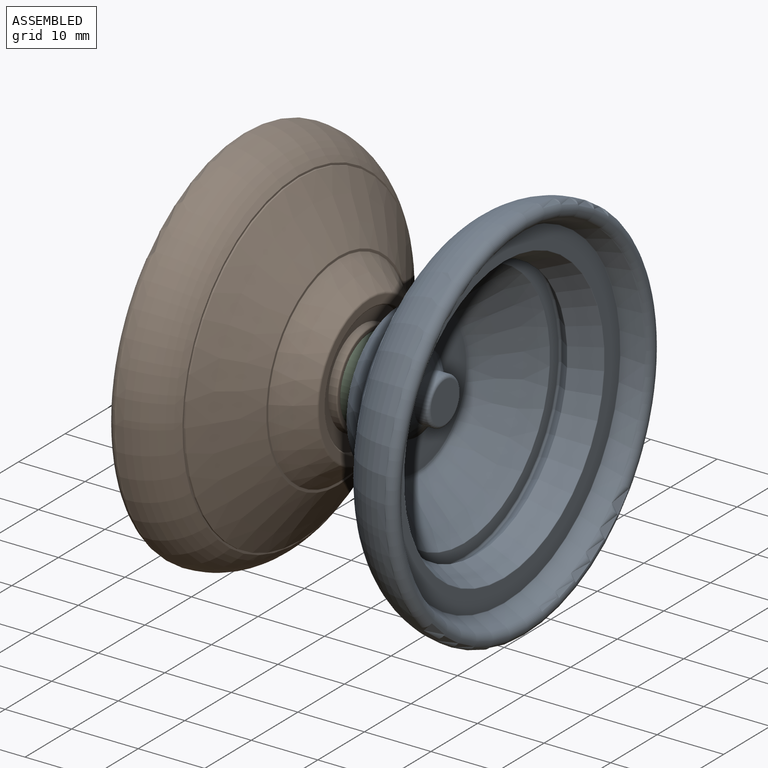
[diagram: assembled view]
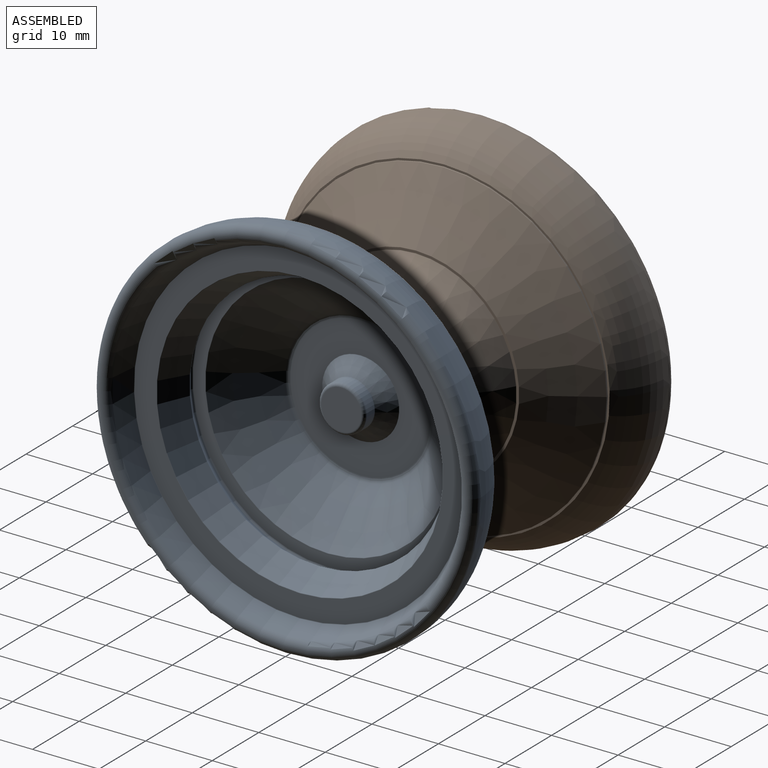
[diagram: assembled view, second angle]
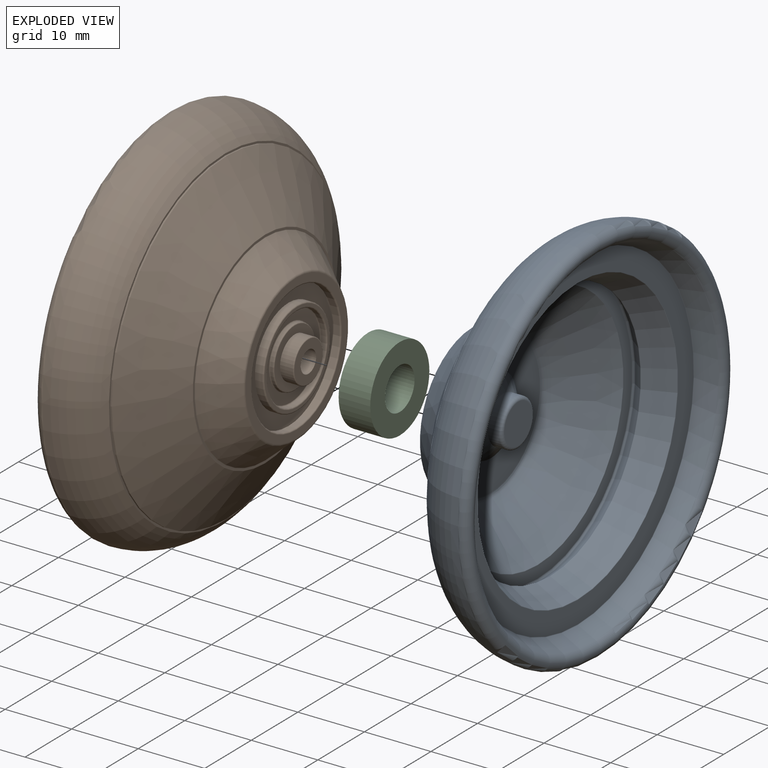
[diagram: exploded view]
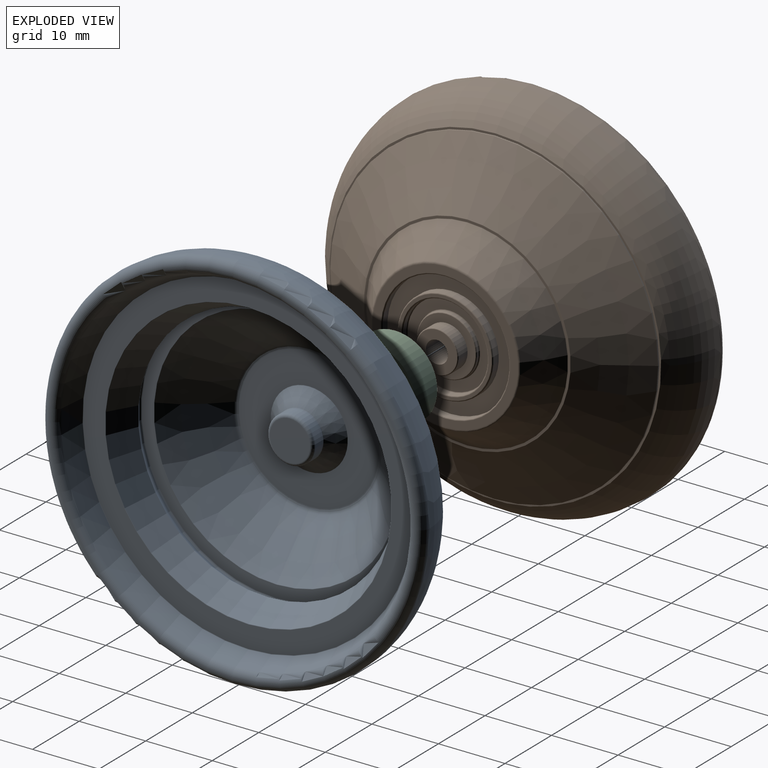
[diagram: exploded view, second angle]
ASSEMBLY  parts=3 mates=2
PART A: 49 faces, bbox 26.3x62.2x62.2 mm
  f0: cone r=26.29mm half-angle=26.5deg, axis (-1,0,0), area 477mm2, adj f1,f48
  f1: torus R=24.88mm, axis (-1,0,0), area 17.4mm2, adj f0,f2
  f2: plane 49.75x49.75mm, normal (-1,0,0), area 485mm2, adj f1,f3
  f3: torus R=21.55mm, axis (-1,0,0), area 15mm2, adj f2,f4
  f4: cone r=21.46mm half-angle=26.5deg, axis (-1,0,0), area 578.5mm2, adj f3,f5
  f5: torus R=19.54mm, axis (-1,0,0), area 13mm2, adj f4,f6
  f6: cone r=19.46mm half-angle=34.5deg, axis (1,0,0), area 221.4mm2, adj f5,f7
  f7: torus R=20.25mm, axis (-1,0,0), area 69.7mm2, adj f6,f8
  f8: plane 40.51x40.51mm, normal (-1,0,0), area 218.3mm2, adj f7,f9
  f9: torus R=18.46mm, axis (-1,0,0), area 8.7mm2, adj f8,f10
  f10: cone r=18.39mm half-angle=46.9deg, axis (-1,0,0), area 917.1mm2, adj f9,f11
  f11: torus R=10.5mm, axis (-1,0,0), area 51.3mm2, adj f10,f12
  f12: plane 21x21mm, normal (-1,0,0), area 239.8mm2, adj f11,f13
  f13: torus R=5.82mm, axis (-1,0,0), area 2.6mm2, adj f12,f14
  f14: cone r=3.54mm half-angle=49.6deg, axis (1,0,0), area 85.2mm2, adj f13,f15
  f15: torus R=3.6mm, axis (-1,0,0), area 1.9mm2, adj f14,f16
  f16: cylinder r=3.5mm len=7mm, axis (-1,0,0), area 36.4mm2, adj f15,f17
  f17: torus R=3mm, axis (-1,0,0), area 16.4mm2, adj f16,f18
  f18: plane 6x6mm, normal (-1,0,0), area 28.3mm2, adj f17
  f19: cone r=0mm half-angle=45deg, axis (1,0,0), area 12.1mm2, adj f20
  f20: cylinder r=1.65mm len=6.19mm, axis (-1,0,0), area 64.1mm2, adj f19,f21
  f21: plane 6.04x6.04mm, normal (1,0,0), area 20.1mm2, adj f20,f22
  f22: torus R=3.02mm, axis (-1,0,0), area 4.6mm2, adj f21,f23
  f23: cylinder r=3.17mm len=6.34mm, axis (-1,0,0), area 38mm2, adj f22,f24
  f24: plane 8.7x8.7mm, normal (1,0,0), area 27.9mm2, adj f23,f25
  f25: torus R=4.35mm, axis (-1,0,0), area 6.6mm2, adj f24,f26
  f26: cylinder r=4.5mm len=9mm, axis (-1,0,0), area 9.6mm2, adj f25,f27
  f27: torus R=4.65mm, axis (-1,0,0), area 6.7mm2, adj f26,f28
  f28: plane 12.5x12.5mm, normal (1,0,0), area 54.8mm2, adj f27,f29
  f29: torus R=6.25mm, axis (-1,0,0), area 9.4mm2, adj f28,f30
  f30: cylinder r=6.4mm len=12.8mm, axis (-1,0,0), area 26.1mm2, adj f29,f31
  f31: torus R=6.6mm, axis (-1,0,0), area 12.8mm2, adj f30,f32
  f32: plane 14x14mm, normal (1,0,0), area 17.1mm2, adj f31,f33
  f33: torus R=7mm, axis (-1,0,0), area 14.1mm2, adj f32,f34
  f34: cylinder r=7.2mm len=14.4mm, axis (-1,0,0), area 50.2mm2, adj f33,f35
  f35: plane 19.1x19.1mm, normal (1,0,0), area 123.7mm2, adj f34,f36
  f36: cylinder r=9.55mm len=19.1mm, axis (-1,0,0), area 60mm2, adj f35,f37
  f37: torus R=9.75mm, axis (-1,0,0), area 19mm2, adj f36,f38
  f38: plane 21.9x21.9mm, normal (1,0,0), area 78mm2, adj f37,f39
  f39: torus R=10.95mm, axis (-1,0,0), area 24.1mm2, adj f38,f40
  f40: cone r=11.25mm half-angle=40.5deg, axis (-1,0,0), area 492mm2, adj f39,f41
  f41: torus R=15.19mm, axis (-1,0,0), area 8.2mm2, adj f40,f42
  f42: plane 31.01x31.01mm, normal (1,0,0), area 30.7mm2, adj f41,f43
  f43: torus R=15.5mm, axis (-1,0,0), area 6mm2, adj f42,f44
  f44: cone r=15.56mm half-angle=57.5deg, axis (-1,0,0), area 1359mm2, adj f43,f45
  f45: cylinder r=24.64mm len=49.28mm, axis (-1,0,0), area 35.4mm2, adj f44,f46
  f46: plane 49.88x49.88mm, normal (1,0,0), area 46.7mm2, adj f45,f47
  f47: torus R=19.75mm, axis (-1,0,0), area 1484mm2, adj f46,f48
  f48: torus R=27.45mm, axis (-1,0,0), area 605.4mm2, adj f0,f47
PART B: same geometry as A
PART C: 4 faces, bbox 12.7x12.7x4.8 mm
  f0: cylinder r=3.17mm len=6.35mm, axis (0,0,-1), area 94.8mm2, adj f2,f3
  f1: cylinder r=6.35mm len=12.7mm, axis (0,0,-1), area 189.5mm2, adj f2,f3
  f2: plane 12.7x12.7mm, normal (0,0,1), area 95mm2, adj f0,f1
  f3: plane 12.7x12.7mm, normal (0,0,-1), area 95mm2, adj f0,f1
PLACE A rot(axis=(0,1,0),180deg) t=(52.42,1.46,-1.18)mm
PLACE B t=(9.42,1.46,-1.18)mm
PLACE C rot(axis=(0,-1,0),90deg) t=(33.29,1.46,-1.18)mm
MATE fastened C.f1 <-> B.f0  axis (1,0,0) through (28.54,1.46,-1.18)mm
MATE fastened C.f1 <-> A.f0  axis (1,0,0) through (33.29,1.46,-1.18)mm
